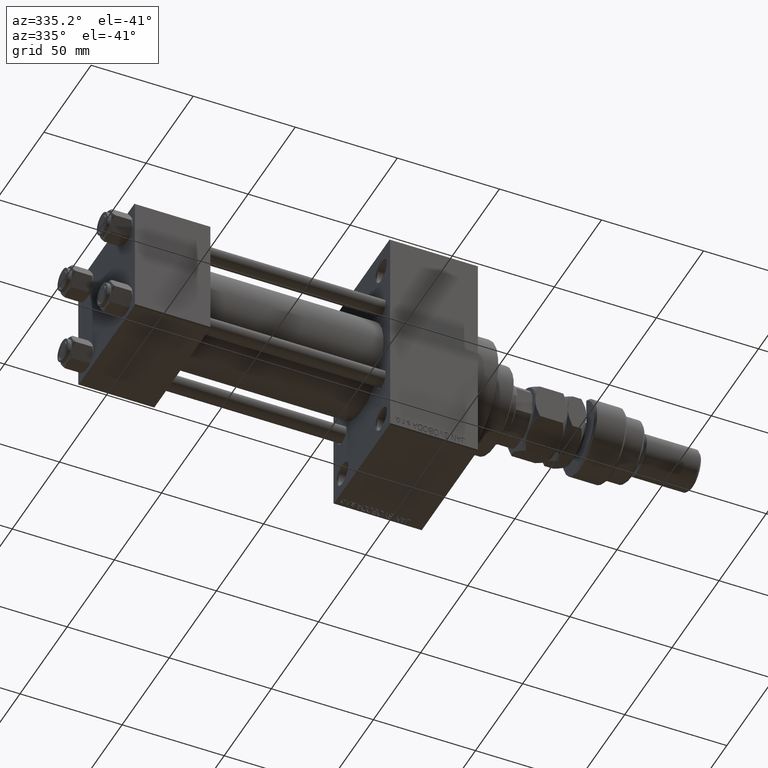
[diagram: clean part render]
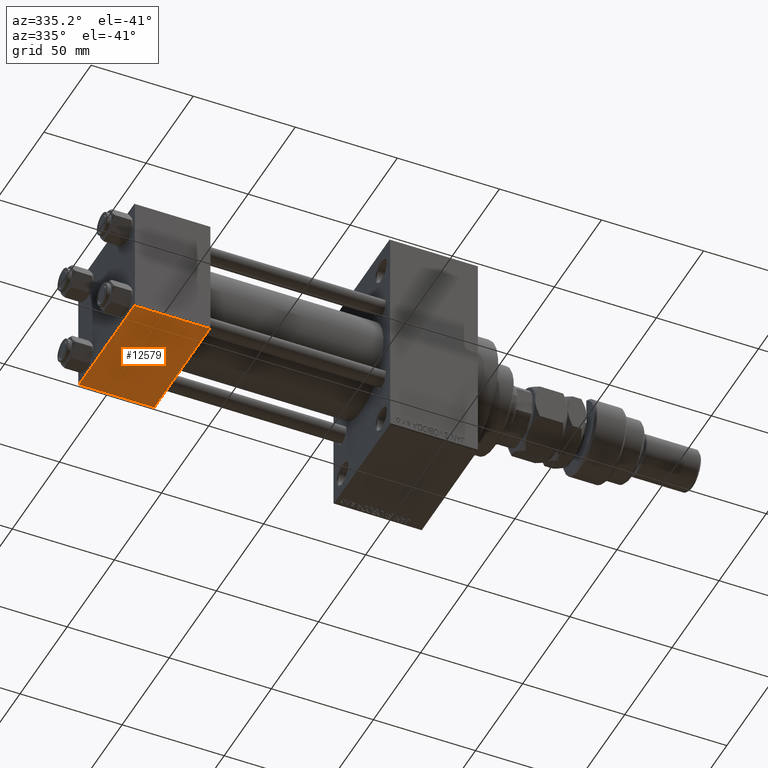
[diagram: same view with one face highlighted and labeled with its STEP entity id]
A machine part, auxiliary view. The second image highlights one B-rep face of the part: STEP entity #12579.
In plain terms, the highlighted planar face has unit normal (0, 0, -1).
Its self-contained STEP definition (entity closure, byte-faithful):
#4204 = LINE ( 'NONE', #40746, #14688 ) ;
#5383 = CARTESIAN_POINT ( 'NONE',  ( 0.000000000000000000, -29.50000000000000000, -30.00000000000000711 ) ) ;
#5819 = AXIS2_PLACEMENT_3D ( 'NONE', #14710, #18950, #34574 ) ;
#6457 = ORIENTED_EDGE ( 'NONE', *, *, #19813, .T. ) ;
#7024 = FACE_OUTER_BOUND ( 'NONE', #28902, .T. ) ;
#8446 = DIRECTION ( 'NONE',  ( 0.000000000000000000, -1.000000000000000000, -1.156482317317871725E-16 ) ) ;
#10910 = VERTEX_POINT ( 'NONE', #48316 ) ;
#12579 = ADVANCED_FACE ( 'NONE', ( #7024 ), #23168, .T. ) ;
#13608 = ORIENTED_EDGE ( 'NONE', *, *, #31123, .T. ) ;
#14688 = VECTOR ( 'NONE', #8446, 1000.000000000000000 ) ;
#14710 = CARTESIAN_POINT ( 'NONE',  ( 37.00000000000000000, 29.99999999999999289, -30.00000000000000000 ) ) ;
#15305 = VECTOR ( 'NONE', #23691, 1000.000000000000000 ) ;
#15828 = VERTEX_POINT ( 'NONE', #5383 ) ;
#16042 = CARTESIAN_POINT ( 'NONE',  ( 37.00000000000000000, 29.49999999999997868, -30.00000000000000000 ) ) ;
#16873 = VECTOR ( 'NONE', #32185, 1000.000000000000000 ) ;
#17035 = CARTESIAN_POINT ( 'NONE',  ( 0.000000000000000000, 29.49999999999997868, -30.00000000000000000 ) ) ;
#18076 = CARTESIAN_POINT ( 'NONE',  ( 37.00000000000000000, -29.50000000000000000, -30.00000000000000711 ) ) ;
#18838 = ORIENTED_EDGE ( 'NONE', *, *, #35728, .F. ) ;
#18950 = DIRECTION ( 'NONE',  ( 0.000000000000000000, 1.156482317317871725E-16, -1.000000000000000000 ) ) ;
#19667 = ORIENTED_EDGE ( 'NONE', *, *, #47648, .T. ) ;
#19813 = EDGE_CURVE ( 'NONE', #38160, #15828, #35094, .T. ) ;
#20807 = CARTESIAN_POINT ( 'NONE',  ( 0.000000000000000000, 29.99999999999999289, -30.00000000000000000 ) ) ;
#23168 = PLANE ( 'NONE',  #5819 ) ;
#23691 = DIRECTION ( 'NONE',  ( -1.000000000000000000, 0.000000000000000000, 0.000000000000000000 ) ) ;
#27138 = CARTESIAN_POINT ( 'NONE',  ( 0.000000000000000000, -29.50000000000001066, -30.00000000000000711 ) ) ;
#27953 = LINE ( 'NONE', #16042, #16873 ) ;
#28902 = EDGE_LOOP ( 'NONE', ( #18838, #19667, #13608, #6457 ) ) ;
#31123 = EDGE_CURVE ( 'NONE', #10910, #38160, #4204, .T. ) ;
#32185 = DIRECTION ( 'NONE',  ( 1.000000000000000000, 0.000000000000000000, 0.000000000000000000 ) ) ;
#34574 = DIRECTION ( 'NONE',  ( 0.000000000000000000, 1.000000000000000000, 1.156482317317871725E-16 ) ) ;
#35094 = LINE ( 'NONE', #27138, #15305 ) ;
#35728 = EDGE_CURVE ( 'NONE', #49752, #15828, #41726, .T. ) ;
#38160 = VERTEX_POINT ( 'NONE', #18076 ) ;
#40746 = CARTESIAN_POINT ( 'NONE',  ( 37.00000000000000000, 29.99999999999999289, -30.00000000000000000 ) ) ;
#41726 = LINE ( 'NONE', #20807, #47857 ) ;
#45180 = DIRECTION ( 'NONE',  ( 0.000000000000000000, -1.000000000000000000, -1.156482317317871725E-16 ) ) ;
#47648 = EDGE_CURVE ( 'NONE', #49752, #10910, #27953, .T. ) ;
#47857 = VECTOR ( 'NONE', #45180, 1000.000000000000000 ) ;
#48316 = CARTESIAN_POINT ( 'NONE',  ( 37.00000000000000000, 29.49999999999997868, -30.00000000000000000 ) ) ;
#49752 = VERTEX_POINT ( 'NONE', #17035 ) ;